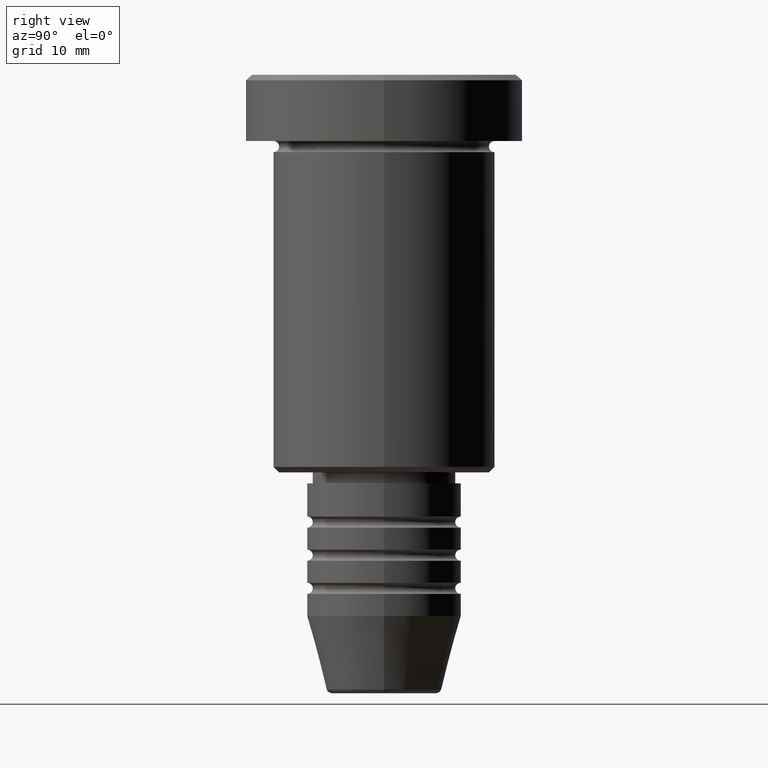
[diagram: clean part render]
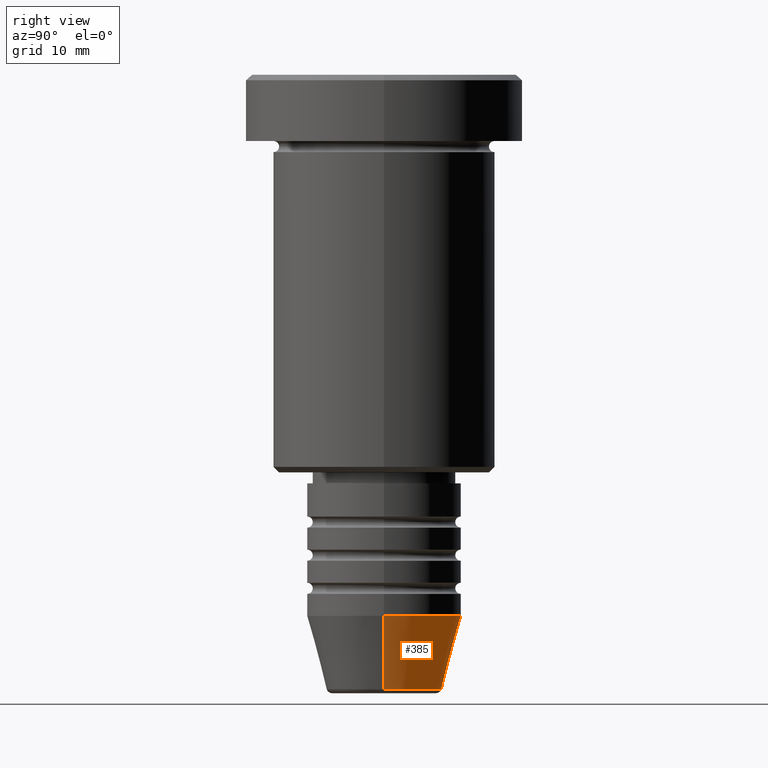
[diagram: same view with one face highlighted and labeled with its STEP entity id]
A machine part, right view. The second image highlights one B-rep face of the part: STEP entity #385.
In plain terms, the highlighted conical surface has half-angle 15 deg.
Its self-contained STEP definition (entity closure, byte-faithful):
#10 = VERTEX_POINT ( 'NONE', #976 ) ;
#32 = CARTESIAN_POINT ( 'NONE',  ( 0.000000000000000000, 0.000000000000000000, -48.99999999999999289 ) ) ;
#53 = CARTESIAN_POINT ( 'NONE',  ( 0.000000000000000000, 0.000000000000000000, -48.99999999999999289 ) ) ;
#78 = VERTEX_POINT ( 'NONE', #941 ) ;
#81 = CARTESIAN_POINT ( 'NONE',  ( -7.000000000000000000, 8.572527594031473190E-16, -48.99999999999999289 ) ) ;
#96 = DIRECTION ( 'NONE',  ( -0.2588190451025213501, 3.169619151431772337E-17, 0.9659258262890680902 ) ) ;
#188 = ORIENTED_EDGE ( 'NONE', *, *, #284, .F. ) ;
#284 = EDGE_CURVE ( 'NONE', #319, #10, #968, .T. ) ;
#293 = ORIENTED_EDGE ( 'NONE', *, *, #866, .T. ) ;
#298 = VERTEX_POINT ( 'NONE', #316 ) ;
#316 = CARTESIAN_POINT ( 'NONE',  ( -7.000000000000000000, 8.572527594031473190E-16, -48.99999999999999289 ) ) ;
#319 = VERTEX_POINT ( 'NONE', #885 ) ;
#347 = LINE ( 'NONE', #81, #1010 ) ;
#351 = VECTOR ( 'NONE', #773, 1000.000000000000000 ) ;
#371 = CONICAL_SURFACE ( 'NONE', #1042, 7.000000000000000000, 0.2617993877991500740 ) ;
#385 = ADVANCED_FACE ( 'NONE', ( #1127 ), #371, .T. ) ;
#405 = CARTESIAN_POINT ( 'NONE',  ( 7.000000000000000000, 0.000000000000000000, -48.99999999999999289 ) ) ;
#429 = CARTESIAN_POINT ( 'NONE',  ( 0.000000000000000000, 0.000000000000000000, -55.62940952255125637 ) ) ;
#437 = CIRCLE ( 'NONE', #1099, 7.000000000000000000 ) ;
#563 = AXIS2_PLACEMENT_3D ( 'NONE', #429, #1062, #1163 ) ;
#627 = CIRCLE ( 'NONE', #563, 5.223655072137191269 ) ;
#658 = EDGE_CURVE ( 'NONE', #78, #298, #347, .T. ) ;
#773 = DIRECTION ( 'NONE',  ( 0.2588190451025213501, 0.000000000000000000, 0.9659258262890680902 ) ) ;
#776 = DIRECTION ( 'NONE',  ( -0.000000000000000000, -0.000000000000000000, 1.000000000000000000 ) ) ;
#782 = ORIENTED_EDGE ( 'NONE', *, *, #658, .T. ) ;
#786 = EDGE_CURVE ( 'NONE', #10, #298, #437, .T. ) ;
#799 = DIRECTION ( 'NONE',  ( -0.000000000000000000, -0.000000000000000000, 1.000000000000000000 ) ) ;
#816 = EDGE_LOOP ( 'NONE', ( #293, #782, #1138, #188 ) ) ;
#866 = EDGE_CURVE ( 'NONE', #319, #78, #627, .T. ) ;
#885 = CARTESIAN_POINT ( 'NONE',  ( 5.223655072137191269, 0.000000000000000000, -55.62940952255125637 ) ) ;
#895 = DIRECTION ( 'NONE',  ( 1.000000000000000000, 0.000000000000000000, 0.000000000000000000 ) ) ;
#941 = CARTESIAN_POINT ( 'NONE',  ( -5.223655072137191269, 7.484830028987059188E-16, -55.62940952255125637 ) ) ;
#968 = LINE ( 'NONE', #405, #351 ) ;
#972 = DIRECTION ( 'NONE',  ( 1.000000000000000000, 0.000000000000000000, 0.000000000000000000 ) ) ;
#976 = CARTESIAN_POINT ( 'NONE',  ( 7.000000000000000000, 0.000000000000000000, -48.99999999999999289 ) ) ;
#1010 = VECTOR ( 'NONE', #96, 1000.000000000000000 ) ;
#1042 = AXIS2_PLACEMENT_3D ( 'NONE', #32, #799, #895 ) ;
#1062 = DIRECTION ( 'NONE',  ( -0.000000000000000000, -0.000000000000000000, 1.000000000000000000 ) ) ;
#1099 = AXIS2_PLACEMENT_3D ( 'NONE', #53, #776, #972 ) ;
#1127 = FACE_OUTER_BOUND ( 'NONE', #816, .T. ) ;
#1138 = ORIENTED_EDGE ( 'NONE', *, *, #786, .F. ) ;
#1163 = DIRECTION ( 'NONE',  ( 1.000000000000000000, 0.000000000000000000, 0.000000000000000000 ) ) ;